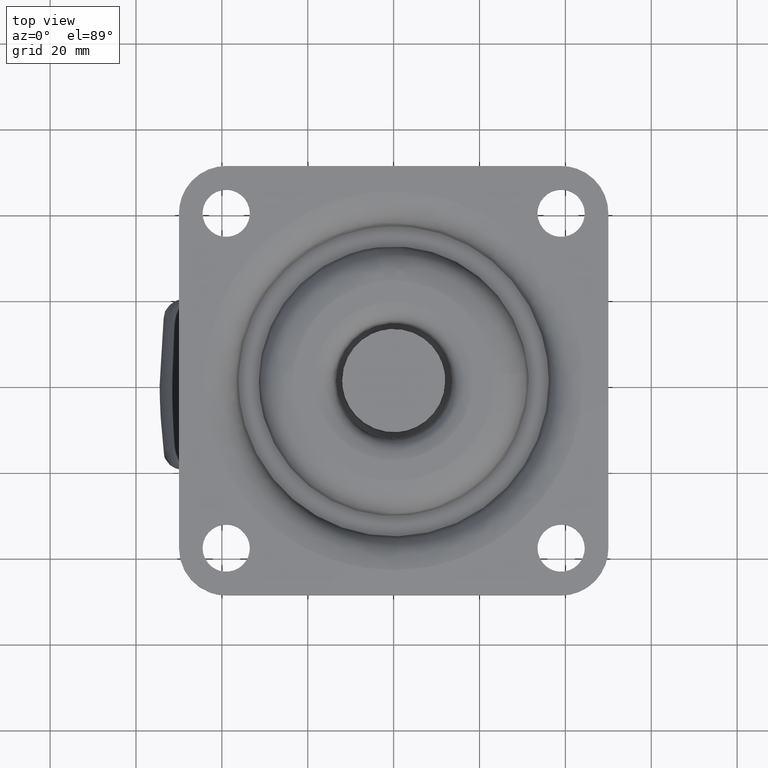
[diagram: clean part render]
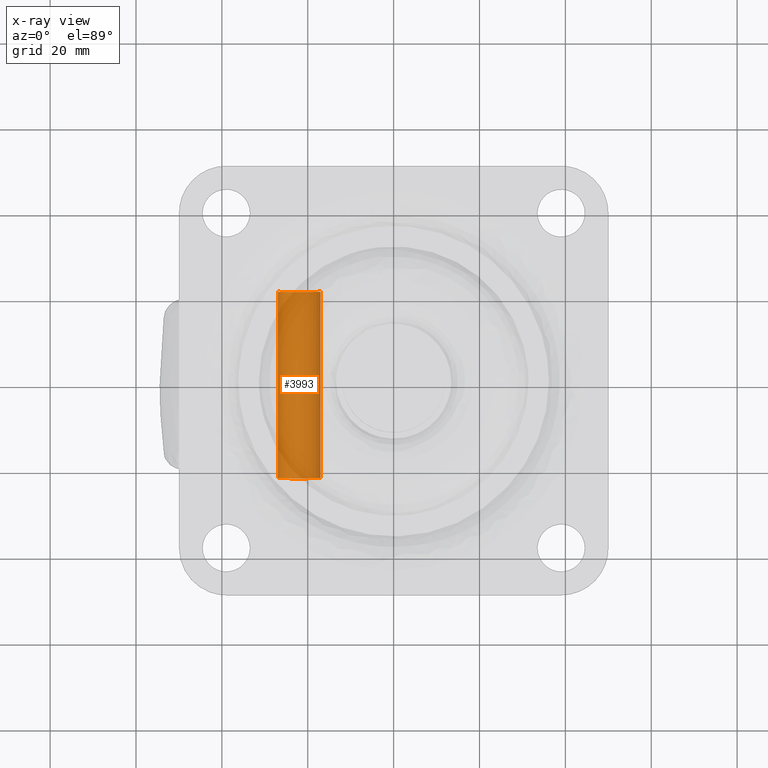
[diagram: x-ray — body ghosted, one internal face saturated and labeled with its STEP entity id]
A machine part, top view, then the same camera in x-ray: the body is ghosted and one INTERNAL B-rep face — a face not visible from any outside direction — is saturated and labeled: STEP entity #3993.
In plain terms, the highlighted face is a freeform B-spline surface patch.
Its self-contained STEP definition (entity closure, byte-faithful):
#3895=CARTESIAN_POINT('',(-4.961331069127693,22.785000000000004,-58.120640010399150));
#3896=CARTESIAN_POINT('',(-4.408656290666105,22.785000000000004,-62.538664152512233));
#3897=CARTESIAN_POINT('',(0.043632677491869,22.785000000000000,-62.499809615320864));
#3898=CARTESIAN_POINT('',(5.043442292812725,22.785000000000007,-62.456176937828985));
#3899=CARTESIAN_POINT('',(4.999809615320855,22.785000000000000,-57.456367322508129));
#3900=CARTESIAN_POINT('',(-4.961331069127693,-22.812125000000005,-58.120640010399150));
#3901=CARTESIAN_POINT('',(-4.408656290666105,-22.812125000000002,-62.538664152512233));
#3902=CARTESIAN_POINT('',(0.043632677491869,-22.812125000000002,-62.499809615320864));
#3903=CARTESIAN_POINT('',(5.043442292812725,-22.812124999999998,-62.456176937828985));
#3904=CARTESIAN_POINT('',(4.999809615320855,-22.812125000000002,-57.456367322508129));
#3912=(BOUNDED_SURFACE()B_SPLINE_SURFACE(2,1,((#3895,#3900),(#3896,#3901),(#3897,#3902),(#3898,#3903),(#3899,#3904)),.UNSPECIFIED.,.F.,.F.,.U.)B_SPLINE_SURFACE_WITH_KNOTS((3,2,3),(2,2),(0.0,7.621529547664949,15.905800795126851),(0.0,45.597125000000013),.UNSPECIFIED.)GEOMETRIC_REPRESENTATION_ITEM()RATIONAL_B_SPLINE_SURFACE(((0.956886118190660,0.956886118190660),(0.730538238691624,0.730538238691624),(1.0,1.0),(0.707106781186548,0.707106781186548),(1.0,1.0)))REPRESENTATION_ITEM('')SURFACE());
#3913=CARTESIAN_POINT('',(-4.961331792105828,21.699999999999999,-58.120634230933213));
#3914=VERTEX_POINT('',#3913);
#3915=CARTESIAN_POINT('',(0.0,21.699999999999999,-62.500000000000000));
#3916=VERTEX_POINT('',#3915);
#3917=CARTESIAN_POINT('',(-4.961331792105828,21.700000000000006,-58.120634230933206));
#3918=CARTESIAN_POINT('',(-4.413498182112694,21.699999999999999,-62.499999999999993));
#3919=CARTESIAN_POINT('',(0.0,21.699999999999999,-62.500000000000000));
#3927=(BOUNDED_CURVE()B_SPLINE_CURVE(2,(#3917,#3918,#3919),.UNSPECIFIED.,.F.,.U.)B_SPLINE_CURVE_WITH_KNOTS((3,3),(0.771473732514663,1.0),.UNSPECIFIED.)CURVE()GEOMETRIC_REPRESENTATION_ITEM()RATIONAL_B_SPLINE_CURVE((0.954005811520297,0.732264823731183,1.0))REPRESENTATION_ITEM(''));
#3928=EDGE_CURVE('',#3914,#3916,#3927,.T.);
#3929=ORIENTED_EDGE('',*,*,#3928,.F.);
#3930=CARTESIAN_POINT('',(-4.961331069113333,-21.699999999999999,-58.120640010513931));
#3931=VERTEX_POINT('',#3930);
#3932=CARTESIAN_POINT('',(-4.961331792105828,21.699999999999999,-58.120634230933213));
#3933=CARTESIAN_POINT('',(-4.961331069113333,-21.699999999999999,-58.120640010513931));
#3934=QUASI_UNIFORM_CURVE('',1,(#3932,#3933),.UNSPECIFIED.,.F.,.U.);
#3935=EDGE_CURVE('',#3914,#3931,#3934,.T.);
#3936=ORIENTED_EDGE('',*,*,#3935,.T.);
#3937=CARTESIAN_POINT('',(0.0,-21.699999999999999,-62.500000000000000));
#3938=VERTEX_POINT('',#3937);
#3939=CARTESIAN_POINT('',(0.0,-21.699999999999999,-62.500000000000000));
#3940=CARTESIAN_POINT('',(-4.413493000545335,-21.699999999999999,-62.499999999999993));
#3941=CARTESIAN_POINT('',(-4.961331069113333,-21.699999999999996,-58.120640010513931));
#3949=(BOUNDED_CURVE()B_SPLINE_CURVE(2,(#3939,#3940,#3941),.UNSPECIFIED.,.F.,.U.)B_SPLINE_CURVE_WITH_KNOTS((3,3),(0.500000000000000,0.728526071021495),.UNSPECIFIED.)CURVE()GEOMETRIC_REPRESENTATION_ITEM()RATIONAL_B_SPLINE_CURVE((1.0,0.732265053902890,0.954005430259575))REPRESENTATION_ITEM(''));
#3950=EDGE_CURVE('',#3938,#3931,#3949,.T.);
#3951=ORIENTED_EDGE('',*,*,#3950,.F.);
#3952=CARTESIAN_POINT('',(4.999809615318037,-21.699999999999999,-57.456367322185102));
#3953=VERTEX_POINT('',#3952);
#3954=CARTESIAN_POINT('',(4.999809615318037,-21.699999999999999,-57.456367322185102));
#3955=CARTESIAN_POINT('',(5.0,-21.700000000000003,-57.478183245573454));
#3956=CARTESIAN_POINT('',(5.0,-21.699999999999999,-57.500000000000000));
#3957=CARTESIAN_POINT('',(5.000000000000001,-21.699999999999996,-62.500000000000000));
#3958=CARTESIAN_POINT('',(0.0,-21.699999999999999,-62.500000000000000));
#3966=(BOUNDED_CURVE()B_SPLINE_CURVE(2,(#3954,#3955,#3956,#3957,#3958),.UNSPECIFIED.,.F.,.U.)B_SPLINE_CURVE_WITH_KNOTS((3,2,3),(0.248460105642253,0.250000000000000,0.500000000000000),.UNSPECIFIED.)CURVE()GEOMETRIC_REPRESENTATION_ITEM()RATIONAL_B_SPLINE_CURVE((0.996414028047732,0.998195901539707,1.0,0.707106781186548,1.0))REPRESENTATION_ITEM(''));
#3967=EDGE_CURVE('',#3953,#3938,#3966,.T.);
#3968=ORIENTED_EDGE('',*,*,#3967,.F.);
#3969=CARTESIAN_POINT('',(4.999809615317713,21.699999999999999,-57.456367322148111));
#3970=VERTEX_POINT('',#3969);
#3971=CARTESIAN_POINT('',(4.999809615317713,21.699999999999999,-57.456367322148111));
#3972=CARTESIAN_POINT('',(4.999809615318037,-21.699999999999999,-57.456367322185102));
#3973=QUASI_UNIFORM_CURVE('',1,(#3971,#3972),.UNSPECIFIED.,.F.,.U.);
#3974=EDGE_CURVE('',#3970,#3953,#3973,.T.);
#3975=ORIENTED_EDGE('',*,*,#3974,.F.);
#3976=CARTESIAN_POINT('',(0.0,21.699999999999999,-62.500000000000000));
#3977=CARTESIAN_POINT('',(5.000000000000001,21.699999999999996,-62.500000000000000));
#3978=CARTESIAN_POINT('',(5.0,21.699999999999999,-57.500000000000000));
#3979=CARTESIAN_POINT('',(5.000000000000001,21.700000000000003,-57.478183245536457));
#3980=CARTESIAN_POINT('',(4.999809615317713,21.699999999999999,-57.456367322148111));
#3988=(BOUNDED_CURVE()B_SPLINE_CURVE(2,(#3976,#3977,#3978,#3979,#3980),.UNSPECIFIED.,.F.,.U.)B_SPLINE_CURVE_WITH_KNOTS((3,2,3),(0.0,0.250000000000000,0.251539894360354),.UNSPECIFIED.)CURVE()GEOMETRIC_REPRESENTATION_ITEM()RATIONAL_B_SPLINE_CURVE((1.0,0.707106781186548,1.0,0.998195901536653,0.996414028041700))REPRESENTATION_ITEM(''));
#3989=EDGE_CURVE('',#3916,#3970,#3988,.T.);
#3990=ORIENTED_EDGE('',*,*,#3989,.F.);
#3991=EDGE_LOOP('',(#3929,#3936,#3951,#3968,#3975,#3990));
#3992=FACE_OUTER_BOUND('',#3991,.T.);
#3993=ADVANCED_FACE('',(#3992),#3912,.F.);